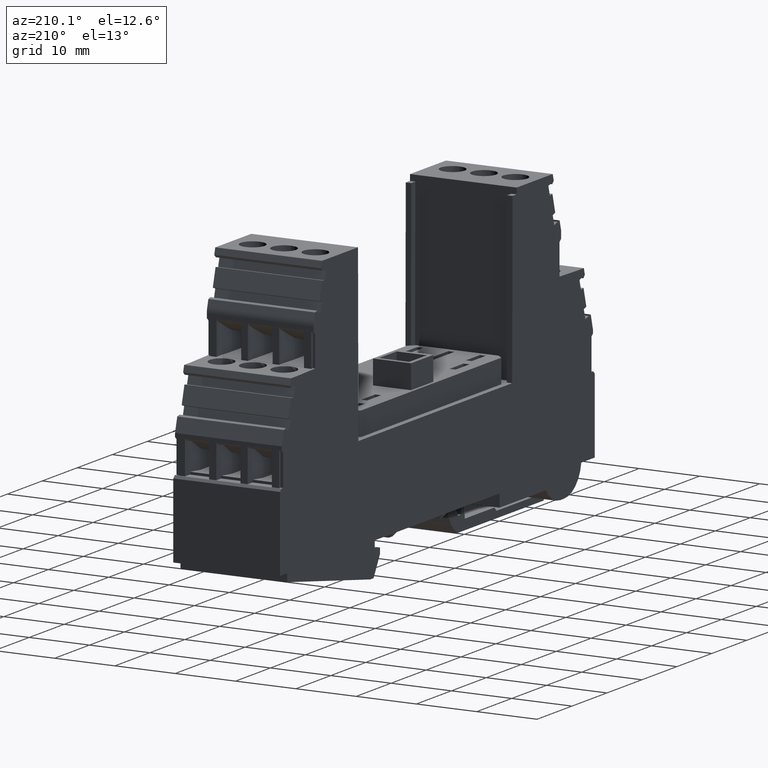
[diagram: clean part render]
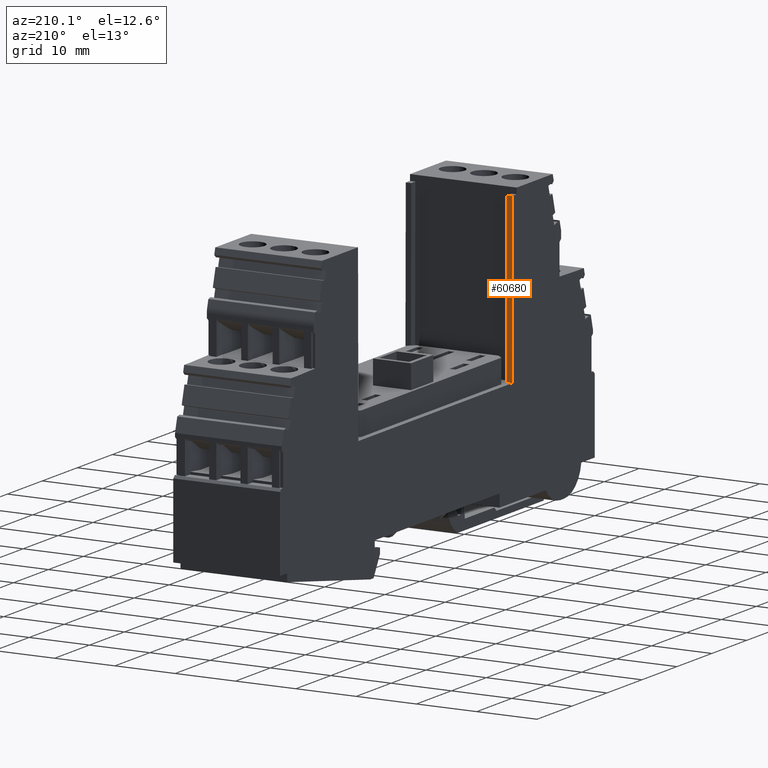
[diagram: same view with one face highlighted and labeled with its STEP entity id]
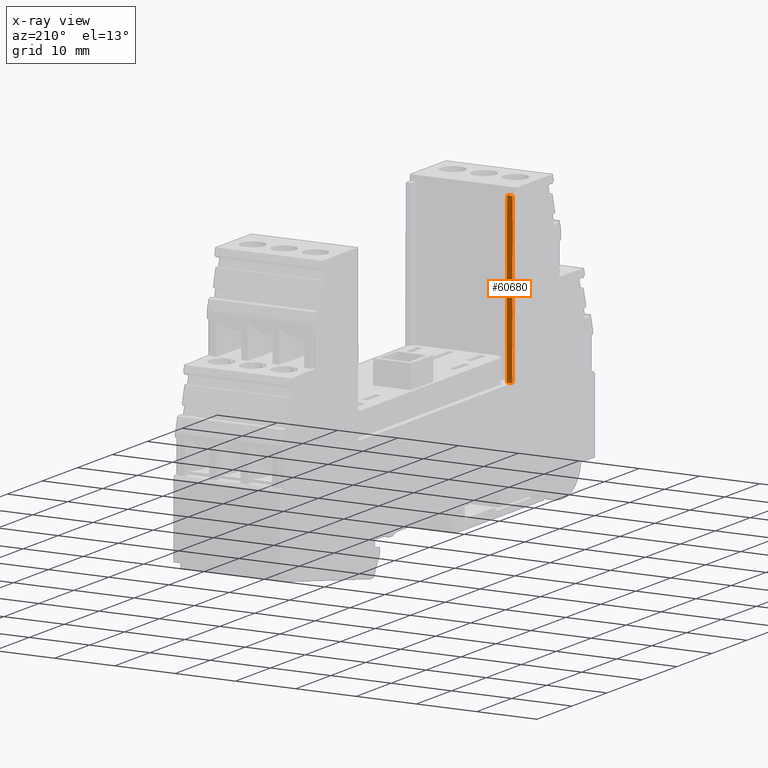
[diagram: x-ray of the same camera — body ghosted, the highlighted face saturated]
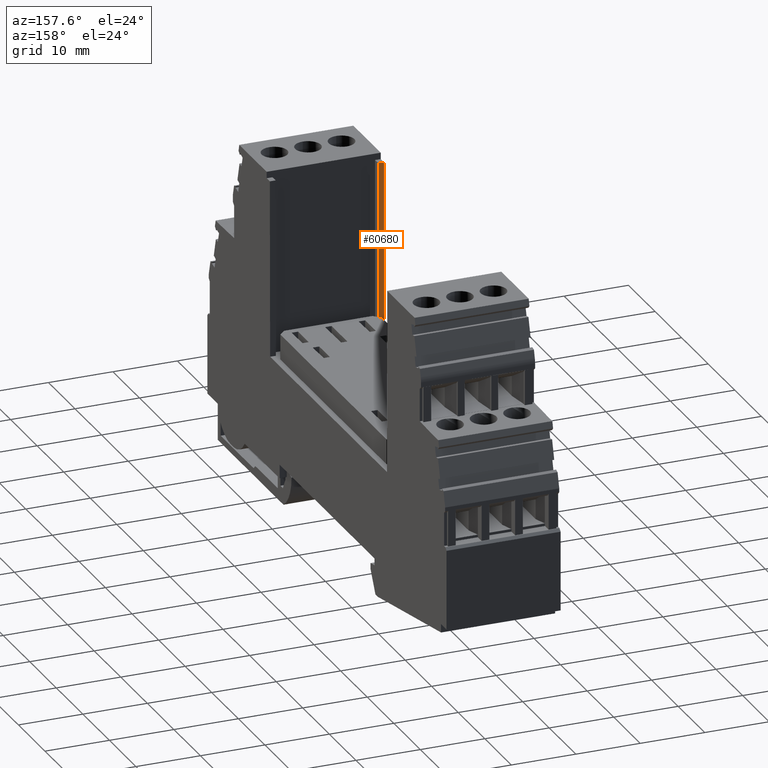
[diagram: same view with one face highlighted and labeled with its STEP entity id]
A machine part, auxiliary view. The second image highlights one B-rep face of the part: STEP entity #60680.
The next image is the same camera in x-ray: the body ghosted, the highlighted face saturated — about 0% of this face is hidden behind the body in this view.
A second angle (auxiliary view) of the same face is appended — the face is thin or edge-on in the first view.
In plain terms, the highlighted planar face has unit normal (-0, -1, -0.0035).
Its self-contained STEP definition (entity closure, byte-faithful):
#19160=CARTESIAN_POINT('',(47.9413513925897,32.556274052444,-55.));
#19170=VERTEX_POINT('',#19160);
#19200=CARTESIAN_POINT('',(47.9833690841006,20.5191410000002,-55.));
#19210=DIRECTION('',(-0.00349065141522361,0.99999390765779,
3.14057048929527E-23));
#19220=VECTOR('',#19210,1.);
#19230=LINE('',#19200,#19220);
#19240=CARTESIAN_POINT('',(47.8453578938458,60.056274052444,-55.));
#19250=VERTEX_POINT('',#19240);
#19260=EDGE_CURVE('',#19170,#19250,#19230,.T.);
#31520=CARTESIAN_POINT('',(47.9413513925897,32.556274052444,
-54.1000000000001));
#31530=VERTEX_POINT('',#31520);
#31560=CARTESIAN_POINT('',(47.9413513925897,32.556274052444,
-3.74999999990759));
#31570=DIRECTION('',(1.22464679914735E-16,7.51478429024826E-19,1.));
#31580=VECTOR('',#31570,1.);
#31590=LINE('',#31560,#31580);
#31600=EDGE_CURVE('',#19170,#31530,#31590,.T.);
#52260=CARTESIAN_POINT('',(47.8453578938458,60.056274052444,
-54.1000000000001));
#52270=VERTEX_POINT('',#52260);
#52320=CARTESIAN_POINT('',(48.1237609408666,-19.6999999999998,
-54.1000000000001));
#52330=DIRECTION('',(-0.00349065141522361,0.99999390765779,
4.33680868994202E-19));
#52340=VECTOR('',#52330,1.);
#52350=LINE('',#52320,#52340);
#52360=EDGE_CURVE('',#31530,#52270,#52350,.T.);
#52670=CARTESIAN_POINT('',(47.8453578938458,60.056274052444,
-3.74999999990759));
#52680=DIRECTION('',(-1.22464679914735E-16,-7.51478429024826E-19,-1.));
#52690=VECTOR('',#52680,1.);
#52700=LINE('',#52670,#52690);
#52710=EDGE_CURVE('',#52270,#19250,#52700,.T.);
#60380=CARTESIAN_POINT('',(47.9413513925897,32.556274052444,-55.));
#60390=DIRECTION('',(-0.99999390765779,-0.00349065141522361,
1.22466556967239E-16));
#60400=DIRECTION('',(0.00349065141522361,-0.99999390765779,
-3.14057048929527E-23));
#60410=AXIS2_PLACEMENT_3D('',#60380,#60390,#60400);
#60420=PLANE('',#60410);
#60620=ORIENTED_EDGE('',*,*,#19260,.T.);
#60630=ORIENTED_EDGE('',*,*,#31600,.F.);
#60640=ORIENTED_EDGE('',*,*,#52360,.F.);
#60650=ORIENTED_EDGE('',*,*,#52710,.F.);
#60660=EDGE_LOOP('',(#60650,#60640,#60630,#60620));
#60670=FACE_OUTER_BOUND('',#60660,.T.);
#60680=ADVANCED_FACE('',(#60670),#60420,.F.);